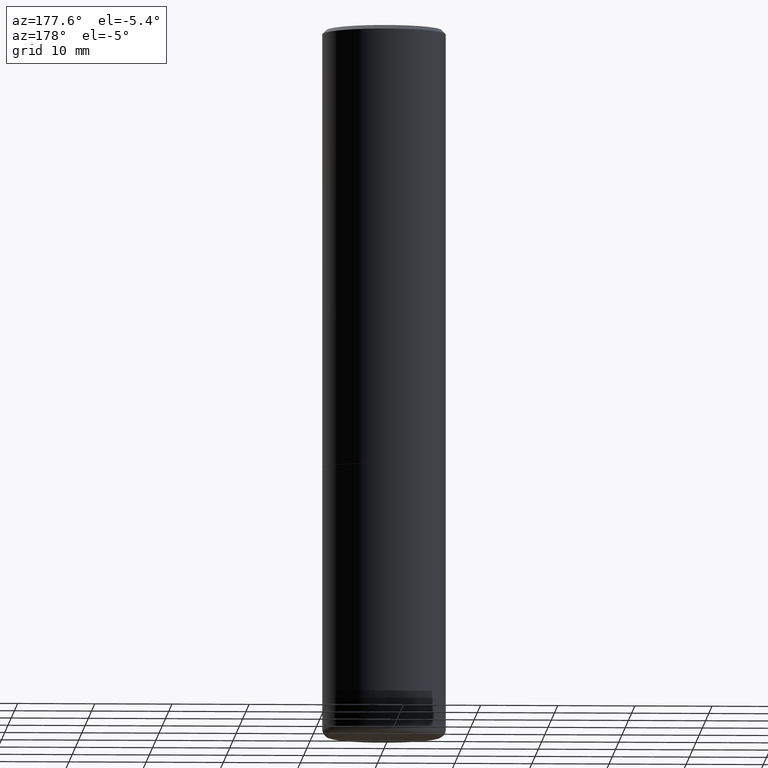
[diagram: clean part render]
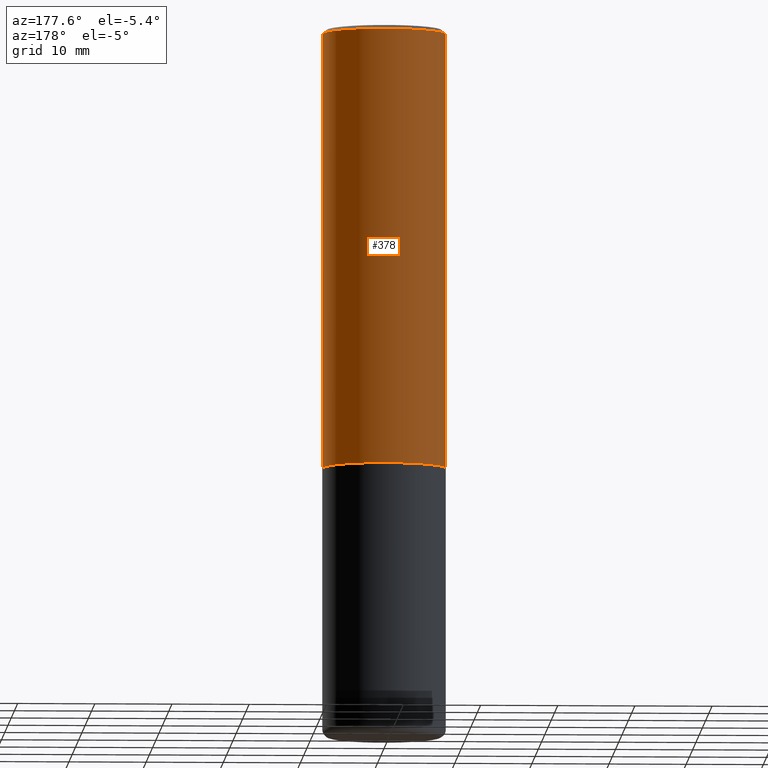
[diagram: same view with one face highlighted and labeled with its STEP entity id]
A machine part, auxiliary view. The second image highlights one B-rep face of the part: STEP entity #378.
In plain terms, the highlighted cylindrical surface (partial cylindrical patch) has radius 7.9997 mm, axis along (-0, 0, 1).
Its self-contained STEP definition (entity closure, byte-faithful):
#16 = EDGE_CURVE ( 'NONE', #102, #393, #250, .T. ) ;
#20 = DIRECTION ( 'NONE',  ( 1.000000000000000000, -6.982962677686267499E-15, 0.000000000000000000 ) ) ;
#32 = AXIS2_PLACEMENT_3D ( 'NONE', #411, #39, #169 ) ;
#39 = DIRECTION ( 'NONE',  ( -2.445468806185136597E-29, 3.491481338843145583E-15, 1.000000000000000000 ) ) ;
#52 = CARTESIAN_POINT ( 'NONE',  ( 0.3149500000000002853, -1.003067673836246727E-14, -2.242999999999999883 ) ) ;
#62 = VERTEX_POINT ( 'NONE', #377 ) ;
#66 = AXIS2_PLACEMENT_3D ( 'NONE', #412, #118, #20 ) ;
#68 = ORIENTED_EDGE ( 'NONE', *, *, #16, .T. ) ;
#79 = DIRECTION ( 'NONE',  ( -2.445468806185136597E-29, 3.491481338843145583E-15, 1.000000000000000000 ) ) ;
#97 = VERTEX_POINT ( 'NONE', #367 ) ;
#102 = VERTEX_POINT ( 'NONE', #52 ) ;
#118 = DIRECTION ( 'NONE',  ( -2.445468806185136597E-29, 3.491481338843145583E-15, 1.000000000000000000 ) ) ;
#131 = CARTESIAN_POINT ( 'NONE',  ( -0.3149500000000001743, 2.237854346276436774E-15, -1.549218606675783237E-29 ) ) ;
#152 = CYLINDRICAL_SURFACE ( 'NONE', #32, 0.3149500000000001743 ) ;
#169 = DIRECTION ( 'NONE',  ( 1.000000000000000000, -6.982962677686265922E-15, 4.876176775795935232E-29 ) ) ;
#180 = CARTESIAN_POINT ( 'NONE',  ( 4.890937612370289799E-31, -6.982962677686315028E-17, -0.02000000000000006981 ) ) ;
#204 = AXIS2_PLACEMENT_3D ( 'NONE', #180, #79, #338 ) ;
#211 = DIRECTION ( 'NONE',  ( -2.445468806185136877E-29, 3.491481338843145188E-15, 1.000000000000000000 ) ) ;
#243 = LINE ( 'NONE', #371, #344 ) ;
#250 = CIRCLE ( 'NONE', #66, 0.3149500000000002853 ) ;
#256 = DIRECTION ( 'NONE',  ( -2.445468806185136877E-29, 3.491481338843145188E-15, 1.000000000000000000 ) ) ;
#292 = LINE ( 'NONE', #131, #349 ) ;
#298 = ORIENTED_EDGE ( 'NONE', *, *, #395, .T. ) ;
#328 = ORIENTED_EDGE ( 'NONE', *, *, #339, .F. ) ;
#332 = CARTESIAN_POINT ( 'NONE',  ( -0.3149500000000002853, -1.712756788624580222E-15, -2.242999999999999883 ) ) ;
#338 = DIRECTION ( 'NONE',  ( 1.000000000000000000, -6.982962677686266711E-15, 0.000000000000000000 ) ) ;
#339 = EDGE_CURVE ( 'NONE', #62, #97, #359, .T. ) ;
#342 = FACE_OUTER_BOUND ( 'NONE', #392, .T. ) ;
#344 = VECTOR ( 'NONE', #211, 39.37007874015748143 ) ;
#349 = VECTOR ( 'NONE', #256, 39.37007874015748143 ) ;
#359 = CIRCLE ( 'NONE', #204, 0.3149500000000000077 ) ;
#361 = EDGE_CURVE ( 'NONE', #102, #62, #243, .T. ) ;
#364 = ORIENTED_EDGE ( 'NONE', *, *, #361, .F. ) ;
#367 = CARTESIAN_POINT ( 'NONE',  ( -0.3149500000000000077, 2.129454468560426573E-15, -0.02000000000000006981 ) ) ;
#371 = CARTESIAN_POINT ( 'NONE',  ( 0.3149500000000001743, -2.199284095337290660E-15, 1.535751875536930690E-29 ) ) ;
#377 = CARTESIAN_POINT ( 'NONE',  ( 0.3149500000000000077, -2.230543471175007450E-15, -0.02000000000000006981 ) ) ;
#378 = ADVANCED_FACE ( 'NONE', ( #342 ), #152, .T. ) ;
#392 = EDGE_LOOP ( 'NONE', ( #68, #298, #328, #364 ) ) ;
#393 = VERTEX_POINT ( 'NONE', #332 ) ;
#395 = EDGE_CURVE ( 'NONE', #393, #97, #292, .T. ) ;
#411 = CARTESIAN_POINT ( 'NONE',  ( 0.000000000000000000, 0.000000000000000000, 0.000000000000000000 ) ) ;
#412 = CARTESIAN_POINT ( 'NONE',  ( 5.485186532273261485E-29, -7.831392643025175821E-15, -2.242999999999999883 ) ) ;